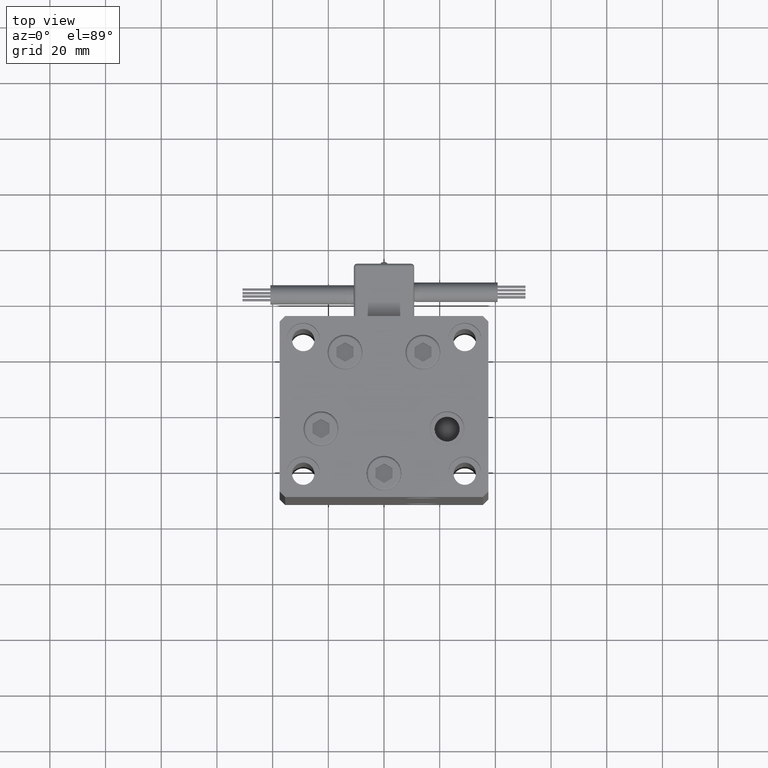
[diagram: clean part render]
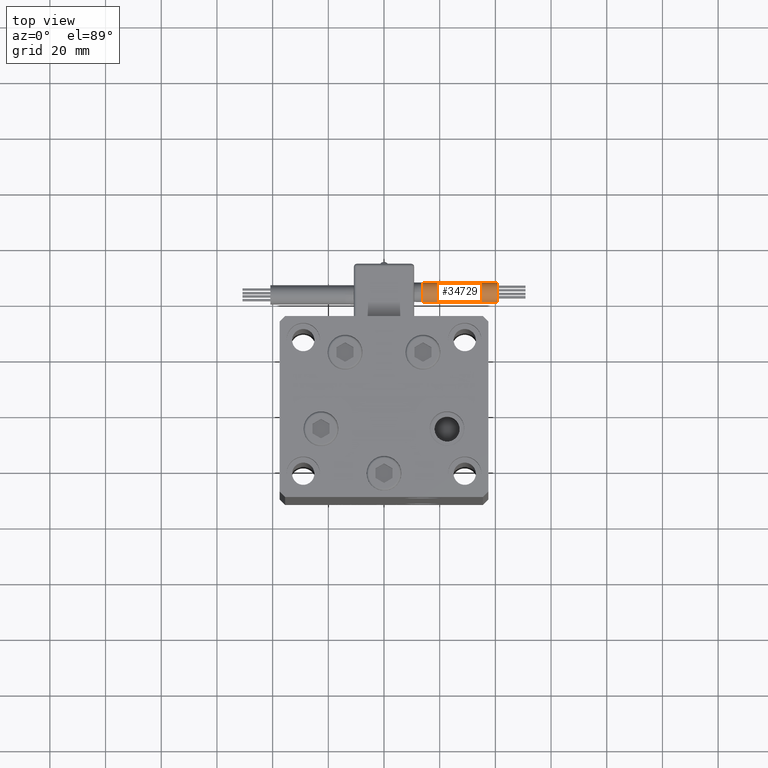
[diagram: same view with one face highlighted and labeled with its STEP entity id]
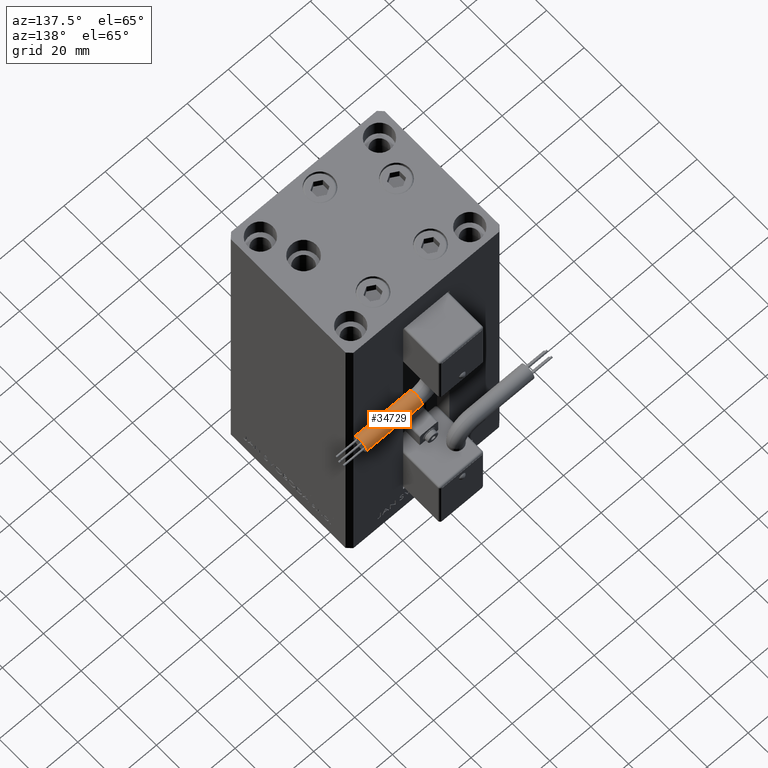
[diagram: same view with one face highlighted and labeled with its STEP entity id]
A machine part, top view. The second image highlights one B-rep face of the part: STEP entity #34729.
A second angle (auxiliary view) of the same face is appended — the face is thin or edge-on in the first view.
In plain terms, the highlighted cylindrical surface (edge-blend (fillet) strip) has radius 3.5 mm, axis along (1, -0, 0).
Its self-contained STEP definition (entity closure, byte-faithful):
#1715 = VERTEX_POINT ( 'NONE', #3040 ) ;
#2519 = CARTESIAN_POINT ( 'NONE',  ( 13.80000000000000071, 45.50000000000000711, -65.00000000000000000 ) ) ;
#3040 = CARTESIAN_POINT ( 'NONE',  ( 40.80000000000000426, 38.50000000000000000, -65.00000000000000000 ) ) ;
#3043 = DIRECTION ( 'NONE',  ( 1.000000000000000000, 0.000000000000000000, 2.220446049250000002E-16 ) ) ;
#3082 = DIRECTION ( 'NONE',  ( 0.000000000000000000, 0.000000000000000000, -1.000000000000000000 ) ) ;
#3236 = CYLINDRICAL_SURFACE ( 'NONE', #14292, 3.500000000000003109 ) ;
#3578 = DIRECTION ( 'NONE',  ( 0.000000000000000000, 0.000000000000000000, -1.000000000000000000 ) ) ;
#6662 = AXIS2_PLACEMENT_3D ( 'NONE', #11520, #49337, #3082 ) ;
#10072 = CARTESIAN_POINT ( 'NONE',  ( 13.79999999999999893, 38.50000000000000000, -65.00000000000000000 ) ) ;
#11234 = CARTESIAN_POINT ( 'NONE',  ( 13.79999999999999716, 38.50000000000000000, -65.00000000000000000 ) ) ;
#11497 = LINE ( 'NONE', #2519, #48980 ) ;
#11520 = CARTESIAN_POINT ( 'NONE',  ( 13.79999999999999893, 42.00000000000000000, -65.00000000000000000 ) ) ;
#12760 = CARTESIAN_POINT ( 'NONE',  ( 13.79999999999999893, 42.00000000000000000, -65.00000000000000000 ) ) ;
#12789 = CIRCLE ( 'NONE', #6662, 3.500000000000003109 ) ;
#14292 = AXIS2_PLACEMENT_3D ( 'NONE', #12760, #38049, #32896 ) ;
#15225 = CARTESIAN_POINT ( 'NONE',  ( 40.80000000000000426, 42.00000000000000000, -65.00000000000000000 ) ) ;
#19706 = AXIS2_PLACEMENT_3D ( 'NONE', #15225, #22584, #27744 ) ;
#22584 = DIRECTION ( 'NONE',  ( 1.000000000000000000, 0.000000000000000000, 2.220446049250000002E-16 ) ) ;
#23230 = LINE ( 'NONE', #11234, #26383 ) ;
#23979 = CARTESIAN_POINT ( 'NONE',  ( 40.80000000000000426, 45.50000000000000711, -65.00000000000000000 ) ) ;
#24383 = EDGE_CURVE ( 'NONE', #40177, #36632, #12789, .T. ) ;
#25644 = CIRCLE ( 'NONE', #49113, 3.500000000000003109 ) ;
#26383 = VECTOR ( 'NONE', #27572, 1000.000000000000000 ) ;
#27572 = DIRECTION ( 'NONE',  ( 1.000000000000000000, -2.599999999999999847E-16, 2.220446049250000002E-16 ) ) ;
#27744 = DIRECTION ( 'NONE',  ( 0.000000000000000000, 0.000000000000000000, -1.000000000000000000 ) ) ;
#27771 = VERTEX_POINT ( 'NONE', #23979 ) ;
#27788 = ORIENTED_EDGE ( 'NONE', *, *, #33201, .T. ) ;
#28389 = EDGE_LOOP ( 'NONE', ( #53452, #34136, #50194, #27788, #35611 ) ) ;
#29368 = CARTESIAN_POINT ( 'NONE',  ( 13.79999999999999893, 45.50000000000000711, -65.00000000000000000 ) ) ;
#32896 = DIRECTION ( 'NONE',  ( -4.956352788505158337E-16, -1.000000000000000000, 0.000000000000000000 ) ) ;
#33138 = EDGE_CURVE ( 'NONE', #41204, #27771, #11497, .T. ) ;
#33201 = EDGE_CURVE ( 'NONE', #36632, #1715, #23230, .T. ) ;
#34136 = ORIENTED_EDGE ( 'NONE', *, *, #35793, .T. ) ;
#34729 = ADVANCED_FACE ( 'NONE', ( #40534 ), #3236, .T. ) ;
#35611 = ORIENTED_EDGE ( 'NONE', *, *, #43543, .F. ) ;
#35793 = EDGE_CURVE ( 'NONE', #41204, #40177, #25644, .T. ) ;
#36264 = DIRECTION ( 'NONE',  ( 1.000000000000000000, -2.599999999999999847E-16, 2.220446049250000002E-16 ) ) ;
#36632 = VERTEX_POINT ( 'NONE', #10072 ) ;
#37318 = CARTESIAN_POINT ( 'NONE',  ( 13.79999999999999893, 42.00000000000000000, -65.00000000000000000 ) ) ;
#38049 = DIRECTION ( 'NONE',  ( 1.000000000000000000, -2.599999999999999847E-16, 2.220446049250000002E-16 ) ) ;
#40177 = VERTEX_POINT ( 'NONE', #48682 ) ;
#40534 = FACE_OUTER_BOUND ( 'NONE', #28389, .T. ) ;
#41204 = VERTEX_POINT ( 'NONE', #29368 ) ;
#43157 = CIRCLE ( 'NONE', #19706, 3.500000000000003109 ) ;
#43543 = EDGE_CURVE ( 'NONE', #27771, #1715, #43157, .T. ) ;
#48682 = CARTESIAN_POINT ( 'NONE',  ( 13.79999999999999893, 41.99999999999999289, -61.50000000000000000 ) ) ;
#48980 = VECTOR ( 'NONE', #36264, 1000.000000000000000 ) ;
#49113 = AXIS2_PLACEMENT_3D ( 'NONE', #37318, #3043, #3578 ) ;
#49337 = DIRECTION ( 'NONE',  ( 1.000000000000000000, 0.000000000000000000, 2.220446049250000002E-16 ) ) ;
#50194 = ORIENTED_EDGE ( 'NONE', *, *, #24383, .T. ) ;
#53452 = ORIENTED_EDGE ( 'NONE', *, *, #33138, .F. ) ;